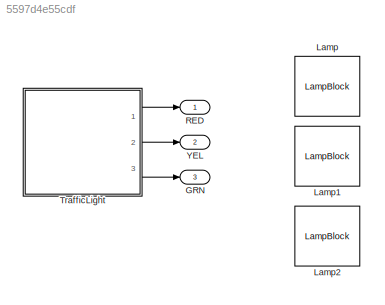
MODEL slx_5597d4e55cdf
KIND model
CONFIG AbsTol = auto
CONFIG EnableMultiTasking = off
CONFIG FixedStep = 1
CONFIG MaxStep = auto
CONFIG MinStep = auto
CONFIG RelTol = 1e-3
CONFIG SampleTimeConstraint = Unconstrained
CONFIG SolverName = FixedStepAuto
CONFIG StartTime = 0.0
CONFIG StopTime = 10.0
BLOCK [Outport] GRN
  Port = 3
BLOCK [LampBlock] Lamp
BLOCK [LampBlock] Lamp1
BLOCK [LampBlock] Lamp2
BLOCK [Outport] RED
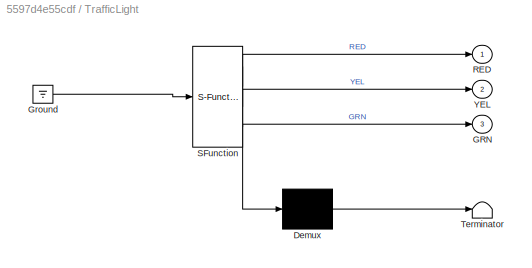
BLOCK [SubSystem] TrafficLight
  ErrorFcn = Stateflow.Translate.translate
  PermitHierarchicalResolution = ExplicitOnly
  Ports = [0, 3]
  RequestExecContextInheritance = off
  SFBlockType = Chart
  TreatAsAtomicUnit = on
BLOCK [Demux] TrafficLight/ Demux 
  Outputs = 1
  Ports = [1, 1]
BLOCK [Ground] TrafficLight/ Ground 
BLOCK [S-Function] TrafficLight/ SFunction 
  EnableBusSupport = on
  FunctionName = sf_sfun
  PortCounts = [1 4]
  Ports = [1, 4]
  SFcnIsStateOwnerBlock = off
  SFunctionDeploymentMode = off
  Tag = Stateflow S-Function 3
BLOCK [Terminator] TrafficLight/ Terminator 
BLOCK [Outport] TrafficLight/GRN
  Port = 3
BLOCK [Outport] TrafficLight/RED
BLOCK [Outport] TrafficLight/YEL
  Port = 2
BLOCK [Outport] YEL
  Port = 2
LINE TrafficLight:1 -> RED:1
LINE TrafficLight:2 -> YEL:1
LINE TrafficLight:3 -> GRN:1
CHART TrafficLight states=3 transitions=4
  STATE_LABEL 'stop\nentry:\nRED = 1;\nYEL = 0;\nGRN = 0;'
  STATE_LABEL 'ready\nentry:\nRED = 0;\nYEL = 1;\nGRN = 0;'
  STATE_LABEL 'go\nentry:\nRED = 0;\nYEL = 0;\nGRN = 1;'
CHART  states=0 transitions=0
